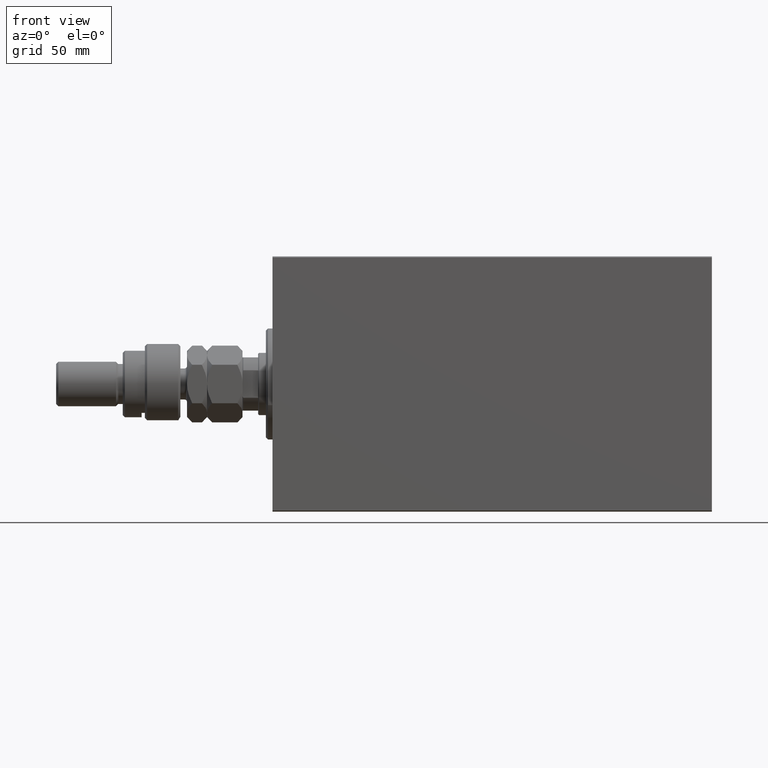
[diagram: clean part render]
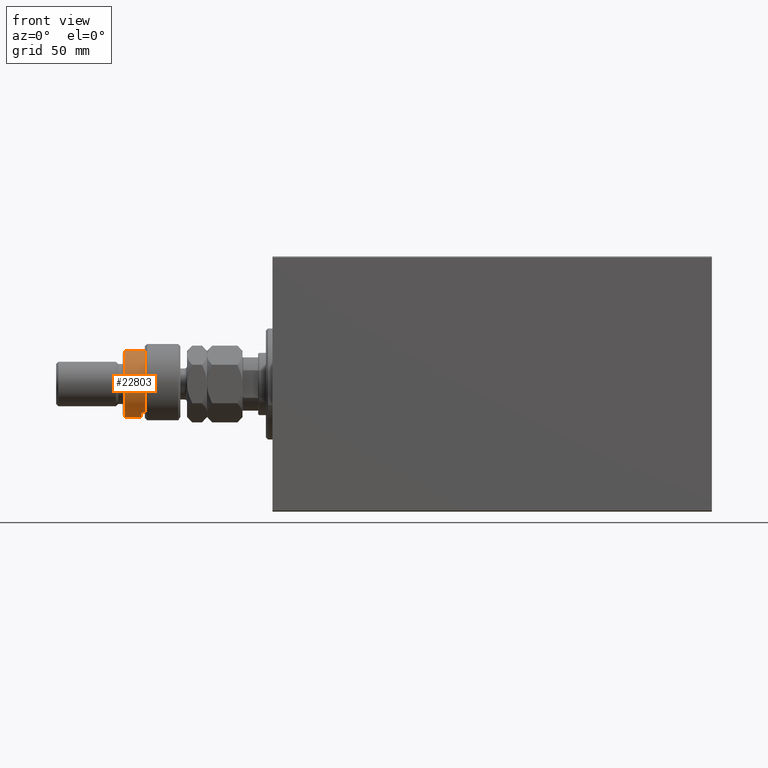
[diagram: same view with one face highlighted and labeled with its STEP entity id]
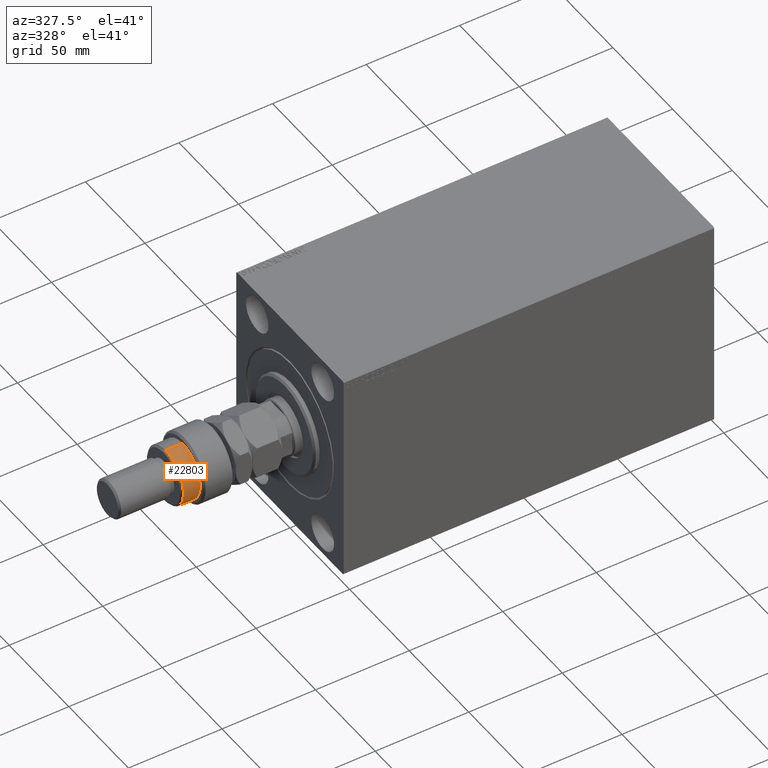
[diagram: same view with one face highlighted and labeled with its STEP entity id]
A machine part, front view. The second image highlights one B-rep face of the part: STEP entity #22803.
A second angle (auxiliary view) of the same face is appended — the face is thin or edge-on in the first view.
In plain terms, the highlighted cylindrical surface (edge-blend (fillet) strip) has radius 15 mm, axis along (1, -0, -0).
Its self-contained STEP definition (entity closure, byte-faithful):
#62 = DIRECTION ( 'NONE',  ( -1.000000000000000000, 0.000000000000000000, 0.000000000000000000 ) ) ;
#1068 = CARTESIAN_POINT ( 'NONE',  ( 0.000000000000000000, 0.000000000000000000, 16.00000000000000000 ) ) ;
#1491 = DIRECTION ( 'NONE',  ( -1.000000000000000000, 0.000000000000000000, 0.000000000000000000 ) ) ;
#2153 = AXIS2_PLACEMENT_3D ( 'NONE', #21045, #7391, #62 ) ;
#2339 = VERTEX_POINT ( 'NONE', #31491 ) ;
#2628 = EDGE_CURVE ( 'NONE', #2339, #39238, #7837, .T. ) ;
#2758 = VERTEX_POINT ( 'NONE', #42764 ) ;
#4848 = CARTESIAN_POINT ( 'NONE',  ( 15.00000000000000000, 1.836970198721029589E-15, 16.00000000000000000 ) ) ;
#5862 = ORIENTED_EDGE ( 'NONE', *, *, #43579, .T. ) ;
#6517 = ORIENTED_EDGE ( 'NONE', *, *, #2628, .T. ) ;
#6691 = CYLINDRICAL_SURFACE ( 'NONE', #2153, 15.00000000000000000 ) ;
#6717 = ORIENTED_EDGE ( 'NONE', *, *, #13326, .F. ) ;
#7391 = DIRECTION ( 'NONE',  ( -0.000000000000000000, -0.000000000000000000, -1.000000000000000000 ) ) ;
#7837 = CIRCLE ( 'NONE', #34179, 15.00000000000000000 ) ;
#8264 = AXIS2_PLACEMENT_3D ( 'NONE', #16867, #45650, #17330 ) ;
#10015 = LINE ( 'NONE', #20374, #26088 ) ;
#11911 = VECTOR ( 'NONE', #39729, 1000.000000000000000 ) ;
#13326 = EDGE_CURVE ( 'NONE', #21079, #39238, #10015, .T. ) ;
#13806 = CARTESIAN_POINT ( 'NONE',  ( -12.99038105676658006, -7.500000000000000000, 26.00000000000000355 ) ) ;
#15186 = VERTEX_POINT ( 'NONE', #24312 ) ;
#15446 = DIRECTION ( 'NONE',  ( 0.000000000000000000, 0.000000000000000000, 1.000000000000000000 ) ) ;
#16867 = CARTESIAN_POINT ( 'NONE',  ( 0.000000000000000000, 0.000000000000000000, 24.99999999999997868 ) ) ;
#17330 = DIRECTION ( 'NONE',  ( 1.000000000000000000, 0.000000000000000000, 0.000000000000000000 ) ) ;
#20082 = CARTESIAN_POINT ( 'NONE',  ( -15.00000000000000000, 0.000000000000000000, 17.50000000000000000 ) ) ;
#20335 = AXIS2_PLACEMENT_3D ( 'NONE', #41114, #33321, #1491 ) ;
#20374 = CARTESIAN_POINT ( 'NONE',  ( 15.00000000000000000, 1.836970198721029589E-15, 26.00000000000000355 ) ) ;
#21045 = CARTESIAN_POINT ( 'NONE',  ( 0.000000000000000000, 0.000000000000000000, 26.00000000000000355 ) ) ;
#21067 = CIRCLE ( 'NONE', #20335, 15.00000000000000000 ) ;
#21079 = VERTEX_POINT ( 'NONE', #30400 ) ;
#21595 = ORIENTED_EDGE ( 'NONE', *, *, #41406, .F. ) ;
#21635 = EDGE_CURVE ( 'NONE', #15186, #2339, #35953, .T. ) ;
#21749 = CIRCLE ( 'NONE', #8264, 15.00000000000000000 ) ;
#22513 = ORIENTED_EDGE ( 'NONE', *, *, #21635, .T. ) ;
#22803 = ADVANCED_FACE ( 'NONE', ( #25055 ), #6691, .T. ) ;
#24312 = CARTESIAN_POINT ( 'NONE',  ( -12.99038105676658006, -7.500000000000000000, 17.50000000000000000 ) ) ;
#24633 = EDGE_CURVE ( 'NONE', #21079, #2758, #21749, .T. ) ;
#25055 = FACE_OUTER_BOUND ( 'NONE', #44148, .T. ) ;
#26088 = VECTOR ( 'NONE', #38537, 1000.000000000000000 ) ;
#27278 = ORIENTED_EDGE ( 'NONE', *, *, #24633, .T. ) ;
#30400 = CARTESIAN_POINT ( 'NONE',  ( 15.00000000000000000, 1.836970198721029589E-15, 24.99999999999997868 ) ) ;
#31277 = LINE ( 'NONE', #45686, #32456 ) ;
#31491 = CARTESIAN_POINT ( 'NONE',  ( -12.99038105676658006, -7.500000000000000000, 16.00000000000000000 ) ) ;
#31504 = DIRECTION ( 'NONE',  ( -0.000000000000000000, -0.000000000000000000, -1.000000000000000000 ) ) ;
#31584 = VERTEX_POINT ( 'NONE', #20082 ) ;
#32456 = VECTOR ( 'NONE', #31504, 1000.000000000000000 ) ;
#33321 = DIRECTION ( 'NONE',  ( 0.000000000000000000, 0.000000000000000000, -1.000000000000000000 ) ) ;
#34179 = AXIS2_PLACEMENT_3D ( 'NONE', #1068, #15446, #41145 ) ;
#35953 = LINE ( 'NONE', #13806, #11911 ) ;
#38537 = DIRECTION ( 'NONE',  ( -0.000000000000000000, -0.000000000000000000, -1.000000000000000000 ) ) ;
#39238 = VERTEX_POINT ( 'NONE', #4848 ) ;
#39729 = DIRECTION ( 'NONE',  ( -0.000000000000000000, -0.000000000000000000, -1.000000000000000000 ) ) ;
#41114 = CARTESIAN_POINT ( 'NONE',  ( 0.000000000000000000, 0.000000000000000000, 17.50000000000000000 ) ) ;
#41145 = DIRECTION ( 'NONE',  ( 1.000000000000000000, 0.000000000000000000, 0.000000000000000000 ) ) ;
#41406 = EDGE_CURVE ( 'NONE', #15186, #31584, #21067, .T. ) ;
#42764 = CARTESIAN_POINT ( 'NONE',  ( -15.00000000000000000, 0.000000000000000000, 24.99999999999997868 ) ) ;
#43579 = EDGE_CURVE ( 'NONE', #2758, #31584, #31277, .T. ) ;
#44148 = EDGE_LOOP ( 'NONE', ( #6717, #27278, #5862, #21595, #22513, #6517 ) ) ;
#45650 = DIRECTION ( 'NONE',  ( 0.000000000000000000, 0.000000000000000000, -1.000000000000000000 ) ) ;
#45686 = CARTESIAN_POINT ( 'NONE',  ( -15.00000000000000000, 0.000000000000000000, 26.00000000000000355 ) ) ;